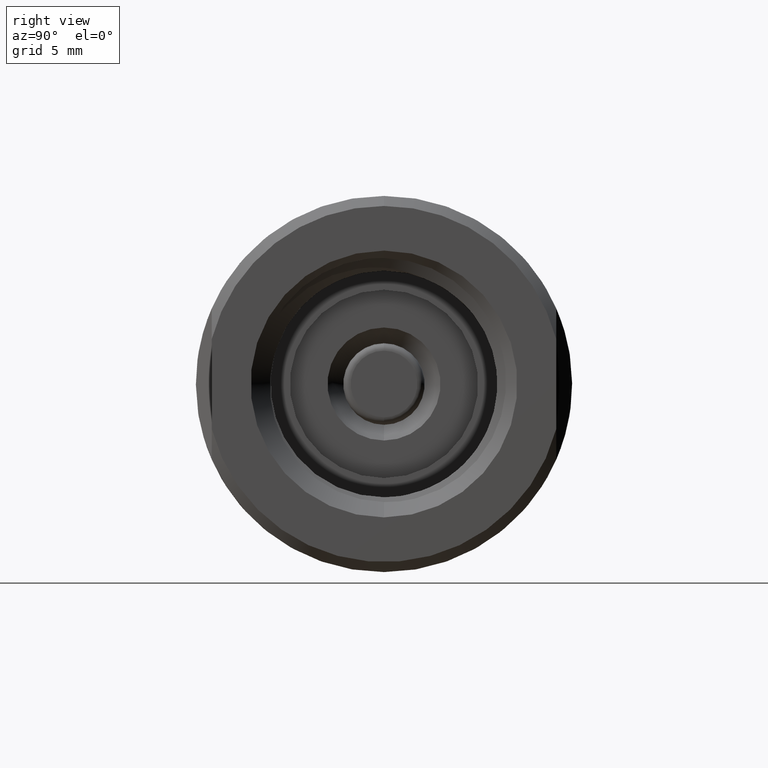
[diagram: clean part render]
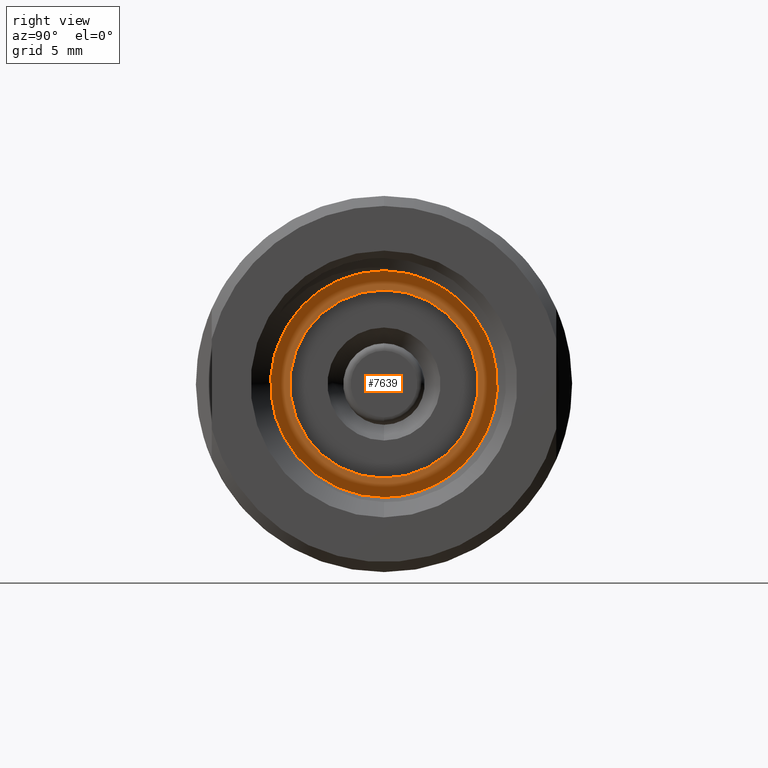
[diagram: same view with one face highlighted and labeled with its STEP entity id]
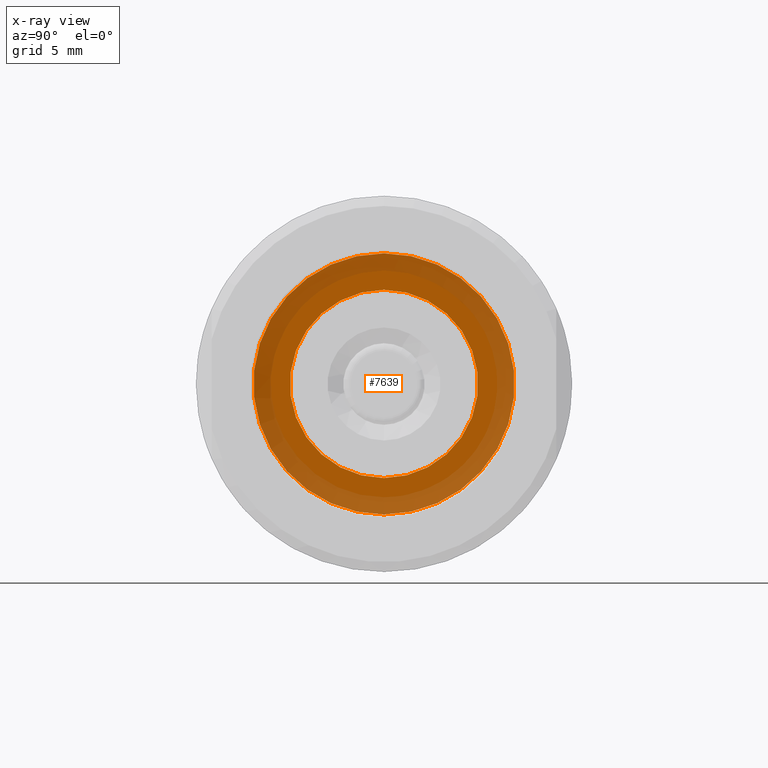
[diagram: x-ray of the same camera — body ghosted, the highlighted face saturated]
A machine part, right view. The second image highlights one B-rep face of the part: STEP entity #7639.
The next image is the same camera in x-ray: the body ghosted, the highlighted face saturated — about 51% of this face is hidden behind the body in this view.
In plain terms, the highlighted planar face has unit normal (1, 0, 0).
Its self-contained STEP definition (entity closure, byte-faithful):
#24 = DIRECTION ( 'NONE',  ( 0.0000000000000000000, 0.0000000000000000000, -1.000000000000000000 ) ) ;
#71 = CARTESIAN_POINT ( 'NONE',  ( 0.2807499999999999440, 0.0000000000000000000, 0.0000000000000000000 ) ) ;
#152 = CARTESIAN_POINT ( 'NONE',  ( 0.2807499999999999440, 0.0000000000000000000, 0.0000000000000000000 ) ) ;
#573 = AXIS2_PLACEMENT_3D ( 'NONE', #152, #3733, #10043 ) ;
#700 = CIRCLE ( 'NONE', #6688, 0.1875000000000001110 ) ;
#773 = ORIENTED_EDGE ( 'NONE', *, *, #2851, .T. ) ;
#902 = CARTESIAN_POINT ( 'NONE',  ( 0.2807499999999999440, 0.0000000000000000000, 0.2600000000000000089 ) ) ;
#914 = FACE_BOUND ( 'NONE', #8305, .T. ) ;
#1241 = ORIENTED_EDGE ( 'NONE', *, *, #6496, .F. ) ;
#1302 = DIRECTION ( 'NONE',  ( -1.000000000000000000, -0.0000000000000000000, -0.0000000000000000000 ) ) ;
#1958 = EDGE_CURVE ( 'NONE', #10535, #6436, #7239, .T. ) ;
#2489 = DIRECTION ( 'NONE',  ( 1.000000000000000000, 0.0000000000000000000, 0.0000000000000000000 ) ) ;
#2851 = EDGE_CURVE ( 'NONE', #5983, #4273, #700, .T. ) ;
#3001 = DIRECTION ( 'NONE',  ( 0.0000000000000000000, 0.0000000000000000000, 1.000000000000000000 ) ) ;
#3049 = CARTESIAN_POINT ( 'NONE',  ( 0.2807499999999999996, 0.0000000000000000000, 0.0000000000000000000 ) ) ;
#3672 = CARTESIAN_POINT ( 'NONE',  ( 0.2807499999999999440, 3.184081677783119300E-17, -0.2600000000000000089 ) ) ;
#3733 = DIRECTION ( 'NONE',  ( -1.000000000000000000, -0.0000000000000000000, -0.0000000000000000000 ) ) ;
#4273 = VERTEX_POINT ( 'NONE', #6297 ) ;
#5809 = CIRCLE ( 'NONE', #573, 0.2600000000000000089 ) ;
#5983 = VERTEX_POINT ( 'NONE', #11018 ) ;
#6297 = CARTESIAN_POINT ( 'NONE',  ( 0.2807499999999999996, 0.0000000000000000000, 0.1875000000000001110 ) ) ;
#6436 = VERTEX_POINT ( 'NONE', #3672 ) ;
#6496 = EDGE_CURVE ( 'NONE', #6436, #10535, #5809, .T. ) ;
#6564 = DIRECTION ( 'NONE',  ( -1.000000000000000000, -0.0000000000000000000, -0.0000000000000000000 ) ) ;
#6688 = AXIS2_PLACEMENT_3D ( 'NONE', #8454, #7404, #10045 ) ;
#7239 = CIRCLE ( 'NONE', #10048, 0.2600000000000000089 ) ;
#7404 = DIRECTION ( 'NONE',  ( -1.000000000000000000, -0.0000000000000000000, -0.0000000000000000000 ) ) ;
#7639 = ADVANCED_FACE ( 'NONE', ( #914, #8751 ), #7871, .T. ) ;
#7871 = PLANE ( 'NONE',  #10173 ) ;
#8067 = ORIENTED_EDGE ( 'NONE', *, *, #10754, .T. ) ;
#8305 = EDGE_LOOP ( 'NONE', ( #8067, #773 ) ) ;
#8328 = CIRCLE ( 'NONE', #9830, 0.1875000000000001110 ) ;
#8454 = CARTESIAN_POINT ( 'NONE',  ( 0.2807499999999999996, 0.0000000000000000000, 0.0000000000000000000 ) ) ;
#8751 = FACE_OUTER_BOUND ( 'NONE', #10886, .T. ) ;
#9830 = AXIS2_PLACEMENT_3D ( 'NONE', #3049, #1302, #11242 ) ;
#10043 = DIRECTION ( 'NONE',  ( 0.0000000000000000000, 0.0000000000000000000, 1.000000000000000000 ) ) ;
#10045 = DIRECTION ( 'NONE',  ( 0.0000000000000000000, 0.0000000000000000000, 1.000000000000000000 ) ) ;
#10048 = AXIS2_PLACEMENT_3D ( 'NONE', #71, #6564, #3001 ) ;
#10173 = AXIS2_PLACEMENT_3D ( 'NONE', #11505, #2489, #24 ) ;
#10360 = ORIENTED_EDGE ( 'NONE', *, *, #1958, .F. ) ;
#10535 = VERTEX_POINT ( 'NONE', #902 ) ;
#10754 = EDGE_CURVE ( 'NONE', #4273, #5983, #8328, .T. ) ;
#10886 = EDGE_LOOP ( 'NONE', ( #10360, #1241 ) ) ;
#11018 = CARTESIAN_POINT ( 'NONE',  ( 0.2807499999999999996, 2.296212748401288650E-17, -0.1875000000000001110 ) ) ;
#11242 = DIRECTION ( 'NONE',  ( 0.0000000000000000000, 0.0000000000000000000, 1.000000000000000000 ) ) ;
#11505 = CARTESIAN_POINT ( 'NONE',  ( 0.2807499999999999996, 1.322355731415936531E-16, 0.0000000000000000000 ) ) ;